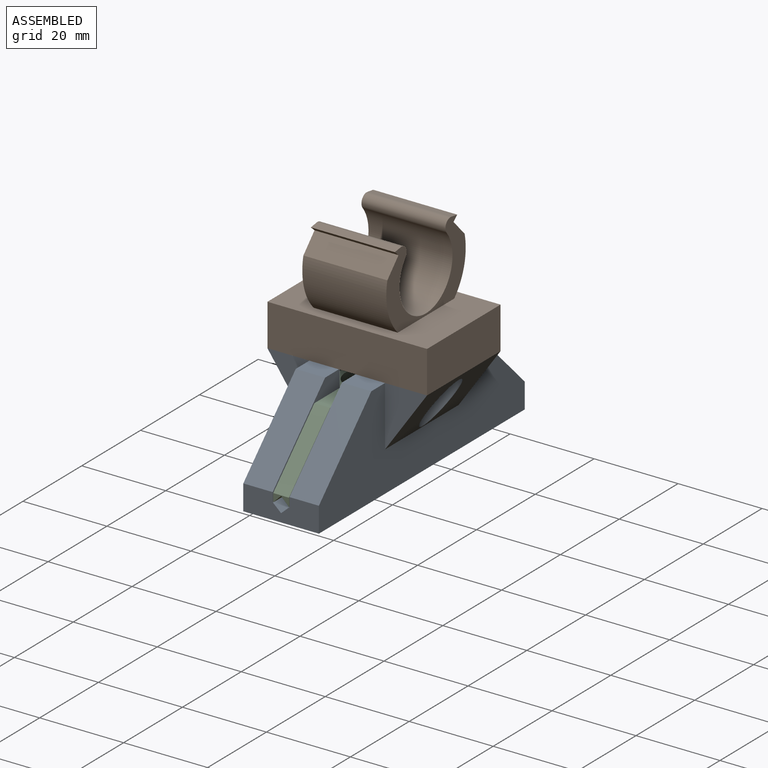
[diagram: assembled view]
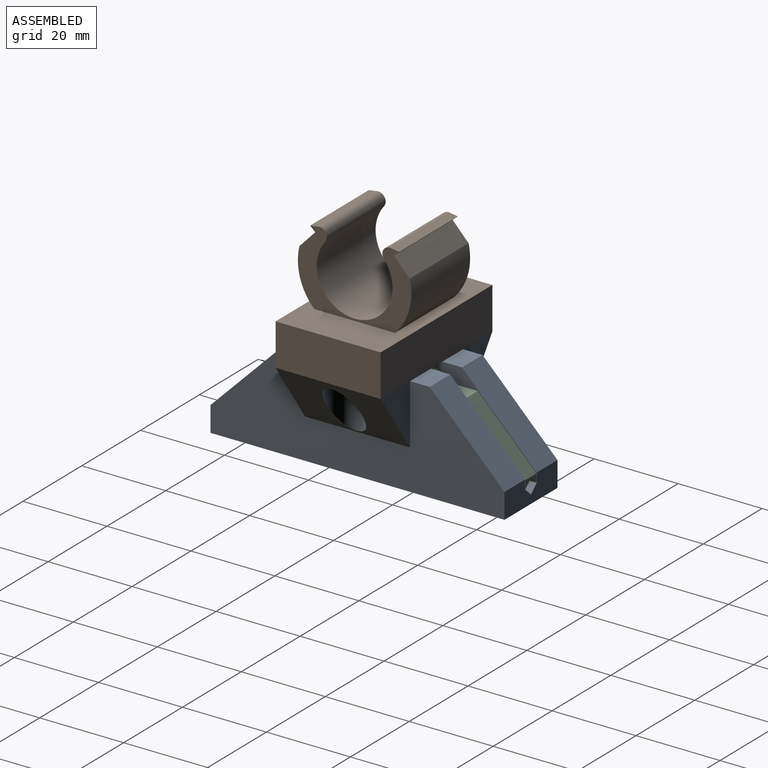
[diagram: assembled view, second angle]
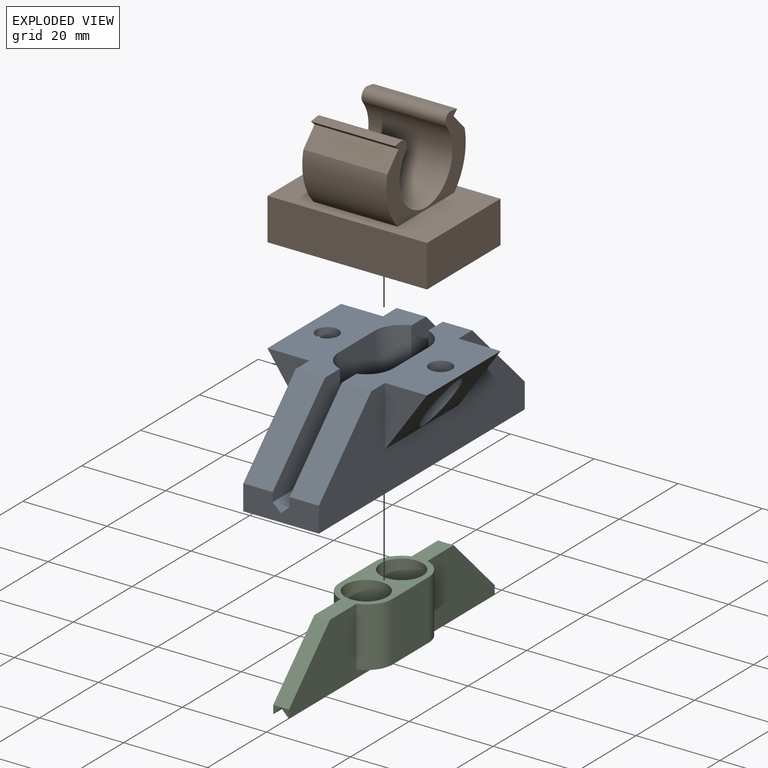
[diagram: exploded view]
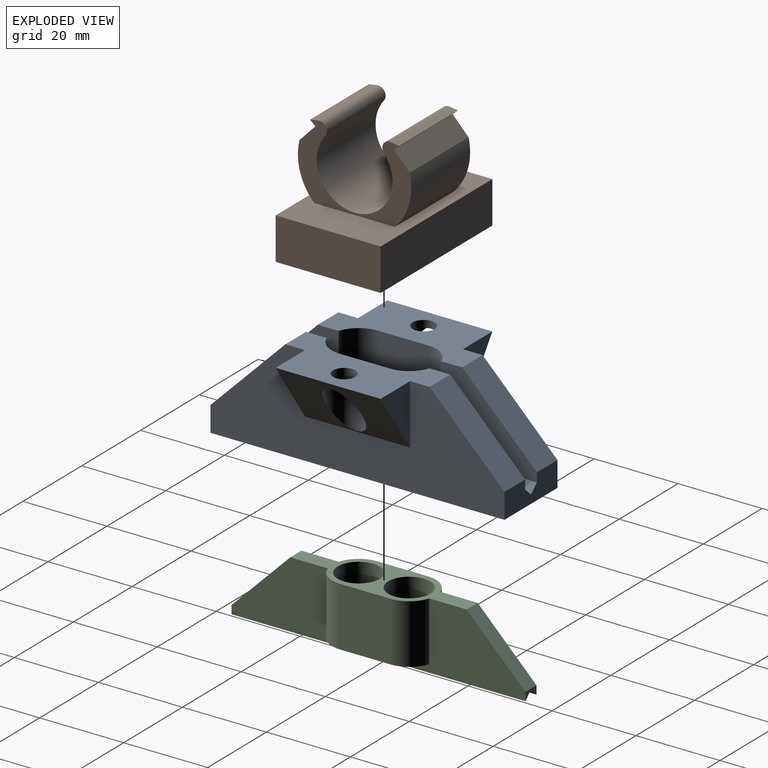
[diagram: exploded view, second angle]
FCSTD DOCUMENT  (FreeCAD 1.0R39109 (Git))
Label: Alweco_GreenHouse_Shade_Assembly
License: All rights reserved
objects: App::FeaturePython×6, App::Link×3, Assembly::JointGroup×1, Assembly::ViewGroup×1, Assembly::AssemblyObject×1
EXTERNAL_REF file=Alweco_GreenHouse_Shade_Base.FCStd obj=Body
EXTERNAL_REF file=Alweco_GreenHouse_Shade_SpringInsert.FCStd obj=Body
EXTERNAL_REF file=Alweco_GreenHouse_Shade_Hook.FCStd obj=Body

FEATURE [App::Link] Alweco_GreenHouse_Shade_Base
  LinkedObject = -> <external Alweco_GreenHouse_Shade_Base.FCStd>#Body
FEATURE [App::FeaturePython] GroundedJoint  # Assembly grounded joint (typed FeaturePython)
  ObjectToGround = -> Alweco_GreenHouse_Shade_Base
FEATURE [App::Link] Alweco_GreenHouse_Shade_SpringInsert
  LinkPlacement = pos=(-2.61e-14,-1.00023e-11,3.83266) rot=(0,0,1;3.14159rad)
  LinkedObject = -> <external Alweco_GreenHouse_Shade_SpringInsert.FCStd>#Body
  Placement = pos=(-2.61e-14,-1.00023e-11,3.83266) rot=(0,0,1;3.14159rad)
FEATURE [App::FeaturePython] Joint  label="Slider"  # Assembly joint (typed FeaturePython)
  Activated = true
  AngleMax = 0
  AngleMin = 0
  Detach1 = false
  Detach2 = false
  Distance = 0
  Distance2 = 0
  EnableAngleMax = false
  EnableAngleMin = false
  EnableLengthMax = true
  EnableLengthMin = true
  JointType = 3 (Slider)
  LengthMax = -1
  LengthMin = -25
  Offset2 = pos=(0,0,0) rot=(0,0,1;3.14159rad)
  Placement1 = pos=(6.5,6,13.8327) rot=(0,1,0;3.14159rad)
  Placement2 = pos=(-6.5,-6,11) rot=(1,0,0;3.14159rad)
  Reference1 = -> Assembly [Alweco_GreenHouse_Shade_Base.Edge100,Alweco_GreenHouse_Shade_Base.Edge100]
  Reference2 = -> Assembly [Alweco_GreenHouse_Shade_SpringInsert.Edge44,Alweco_GreenHouse_Shade_SpringInsert.Edge44]
FEATURE [App::Link] Alweco_GreenHouse_Shade_Hook
  LinkPlacement = pos=(1.21e-14,8.9e-15,23.8327) rot=(0,0,-1;1.5708rad)
  LinkedObject = -> <external Alweco_GreenHouse_Shade_Hook.FCStd>#Body
  Placement = pos=(1.21e-14,8.9e-15,23.8327) rot=(0,0,-1;1.5708rad)
FEATURE [App::FeaturePython] Joint001  label="Fixed"  # Assembly joint (typed FeaturePython)
  Activated = true
  AngleMax = 0
  AngleMin = 0
  Detach1 = false
  Detach2 = false
  Distance = 0
  Distance2 = 0
  EnableAngleMax = false
  EnableAngleMin = false
  EnableLengthMax = false
  EnableLengthMin = false
  JointType = 0 (Fixed)
  LengthMax = 0
  LengthMin = 0
  Offset2 = pos=(0,0,0) rot=(0,0,1;1.5708rad)
  Placement1 = pos=(9.5,16,0) rot=(1,0,0;3.14159rad)
  Placement2 = pos=(16,-9.5,23.8327) rot=(0,0,1;4.71239rad)
  Reference1 = -> Assembly [Alweco_GreenHouse_Shade_Hook.Edge14,Alweco_GreenHouse_Shade_Hook.Edge14]
  Reference2 = -> Assembly [Alweco_GreenHouse_Shade_Base.Edge93,Alweco_GreenHouse_Shade_Base.Edge93]
FEATURE [Assembly::JointGroup] Joints
  Group = -> [GroundedJoint,Joint,Joint001]
FEATURE [App::FeaturePython] Move  # WARN: FeaturePython — macro-defined, semantics opaque (R4)
  MoveType = 0
  MovementTransform = pos=(0,0,39) rot=(0,0,-1.00436;0rad)
  References = -> Assembly [Alweco_GreenHouse_Shade_Hook.]
FEATURE [App::FeaturePython] Move001  # WARN: FeaturePython — macro-defined, semantics opaque (R4)
  MoveType = 0
  MovementTransform = pos=(0,0,-34) rot=(0,0,1;0rad)
  References = -> Assembly [Alweco_GreenHouse_Shade_Base.]
FEATURE [App::FeaturePython] Exploded_View  # WARN: FeaturePython — macro-defined, semantics opaque (R4)
  Moves = -> [Move,Move001]
FEATURE [Assembly::ViewGroup] Exploded_Views
  Group = -> [Exploded_View]
FEATURE [Assembly::AssemblyObject] Assembly
  Group = -> [Joints,Alweco_GreenHouse_Shade_Base,GroundedJoint,Alweco_GreenHouse_Shade_SpringInsert,Joint,Alweco_GreenHouse_Shade_Hook,Joint001,Exploded_Views,Exploded_View,Move,Move001]
  Origin = -> Origin
  Type = Assembly

RESOLVED EXTERNAL PARTS (link-assembly join: the EXTERNAL_REF files above that resolve inside this repo's crawl, each included once):
---- part Alweco_GreenHouse_Shade_Base.FCStd = doc fcstd_9bdf764263a4 ----
FCSTD DOCUMENT  (FreeCAD 1.0R39109 (Git))
Label: Alweco_GreenHouse_Shade_Base
License: All rights reserved
objects: Sketcher::SketchObject×5, PartDesign::Pad×2, PartDesign::Pocket×2, PartDesign::Hole×1, PartDesign::Body×1
note: 26 computed .brp shape members not serialized (recipe doc carries the construction recipe); baked Part::Feature solids carry a one-line shape summary decoded from their .brp

FEATURE [Sketcher::SketchObject] Sketch
  ArcFitTolerance = 1e-06
  AttachmentSupport = -> [XZ_Plane]
  FullyConstrained = true
  MakeInternals = false
  MapMode = 5
  Placement = pos=(0,0,0) rot=(1,0,0;1.5708rad)
  sketch-geometry (9):
    g0: LineSegment StartX=-9 StartY=0 StartZ=0 EndX=9 EndY=0 EndZ=0
    g1: LineSegment StartX=0 StartY=2 StartZ=0 EndX=-2 EndY=3.83266 EndZ=0
    g2: LineSegment StartX=0 StartY=2 StartZ=0 EndX=2 EndY=3.83266 EndZ=0
    g3: LineSegment StartX=2 StartY=3.83266 StartZ=0 EndX=2 EndY=23.8327 EndZ=0
    g4: LineSegment StartX=-2 StartY=3.83266 StartZ=0 EndX=-2 EndY=23.8327 EndZ=0
    g5: LineSegment StartX=-2 StartY=23.8327 StartZ=0 EndX=-9 EndY=23.8327 EndZ=0
    g6: LineSegment StartX=2 StartY=23.8327 StartZ=0 EndX=9 EndY=23.8327 EndZ=0
    g7: LineSegment StartX=9 StartY=23.8327 StartZ=0 EndX=9 EndY=0 EndZ=0
    g8: LineSegment StartX=-9 StartY=23.8327 StartZ=0 EndX=-9 EndY=0 EndZ=0
  constraints (26):
    c: PointOnObject(g0,g-1)
    c: PointOnObject(g0,g-1)
    c: PointOnObject(g1,g-2)
    c: Coincident(g2,g1)
    c: Symmetric(g1,g2,g-2)
    c: DistanceX(g1,g2) = 4
    c: Angle(g2,g1) = 1.65806
    c: Coincident(g3,g2)
    c: Vertical(g3)
    c: Coincident(g4,g1)
    c: Symmetric(g4,g3,g-2)
    c: DistanceY(g3,g3) = 20  'InnerHeight'
    c: DistanceY(g-1,g1) = 2
    c: Coincident(g5,g4)
    c: Horizontal(g5)
    c: Coincident(g6,g3)
    c: Coincident(g7,g6)
    c: Coincident(g7,g0)
    c: Coincident(g8,g5)
    c: Coincident(g8,g0)
    c: Vertical(g8)
    c: Vertical(g7)
    c: Symmetric(g6,g5,g-2)
    c: DistanceX(g6,g6) = 7
    c: DistanceY(g8,g8) = 23.8327  'Height'
    c: DistanceX(g0,g0) = 18  'Width'
FEATURE [PartDesign::Pad] Pad
  Direction = (0,-1,2e-16)
  Length = 70
  Length2 = 10
  Midplane = true
  Placement = pos=(0,0,0) rot=(1,0,0;1.5708rad)
  Profile = -> Sketch
  ReferenceAxis = -> Sketch [N_Axis]
  Refine = true
  Suppressed = false
  Type = 0
FEATURE [Sketcher::SketchObject] Sketch001
  ArcFitTolerance = 1e-06
  AttachmentSupport = -> [Pad]
  FullyConstrained = true
  MakeInternals = false
  MapMode = 5
  Placement = pos=(0,5.3e-15,23.8327) rot=(0,0,1;3.14159rad)
  expr: .Constraints.Height = 25 mm - .Constraints.Width
  sketch-geometry (4):
    g0: ArcOfCircle CenterX=0 CenterY=6 CenterZ=0 NormalX=0 NormalY=0 NormalZ=1 AngleXU=0 Radius=6.5 StartAngle=0 EndAngle=3.14159
    g1: ArcOfCircle CenterX=0 CenterY=-6 CenterZ=0 NormalX=0 NormalY=0 NormalZ=1 AngleXU=0 Radius=6.5 StartAngle=3.14159 EndAngle=6.28319
    g2: LineSegment StartX=6.5 StartY=6 StartZ=0 EndX=6.5 EndY=-6 EndZ=0
    g3: LineSegment StartX=-6.5 StartY=6 StartZ=0 EndX=-6.5 EndY=-6 EndZ=0
  constraints (9):
    c: Tangent(g0,g2) = 1.5708
    c: Tangent(g0,g3) = -1.5708
    c: Tangent(g1,g2) = 1.5708
    c: Tangent(g1,g3) = -1.5708
    c: Equal(g0,g1)
    c: PointOnObject(g0,g-2)
    c: Symmetric(g0,g1,g-1)
    c: Distance(g1,g1) = 13  'Width'
    c: DistanceY(g1,g0) = 12  'Height'
FEATURE [PartDesign::Pocket] Pocket
  BaseFeature = -> Pad
  Direction = (0,0,-1)
  Length = 20
  Length2 = 5
  Placement = pos=(0,0,0) rot=(1,0,0;1.5708rad)
  Profile = -> Sketch001
  ReferenceAxis = -> Sketch001 [N_Axis]
  Refine = true
  Suppressed = false
  Type = 0
FEATURE [Sketcher::SketchObject] Sketch002
  ArcFitTolerance = 1e-06
  AttachmentSupport = -> [XZ_Plane]
  FullyConstrained = true
  MakeInternals = false
  MapMode = 5
  Placement = pos=(0,0,0) rot=(1,0,0;1.5708rad)
  expr: Constraints[15] = <<Sketch>>.Constraints.Width
  expr: Constraints[5] = <<Sketch>>.Constraints.Height
  sketch-geometry (6):
    g0: LineSegment StartX=9 StartY=23.8327 StartZ=0 EndX=19 EndY=23.8327 EndZ=0
    g1: LineSegment StartX=-9 StartY=23.8327 StartZ=0 EndX=-19 EndY=23.8327 EndZ=0
    g2: LineSegment StartX=19 StartY=23.8327 StartZ=0 EndX=9 EndY=9.55118 EndZ=0
    g3: LineSegment StartX=9 StartY=23.8327 StartZ=0 EndX=9 EndY=9.55118 EndZ=0
    g4: LineSegment StartX=-19 StartY=23.8327 StartZ=0 EndX=-9 EndY=9.55118 EndZ=0
    g5: LineSegment StartX=-9 StartY=9.55118 StartZ=0 EndX=-9 EndY=23.8327 EndZ=0
  constraints (17):
    c: Distance(g0) = 10
    c: Horizontal(g0)
    c: Distance(g1) = 10
    c: Horizontal(g1)
    c: Symmetric(g1,g0,g-2)
    c: DistanceY(g-1,g0) = 23.8327
    c: Coincident(g2,g0)
    c: Coincident(g3,g0)
    c: Coincident(g3,g2)
    c: Vertical(g3)
    c: Coincident(g4,g1)
    c: Coincident(g5,g4)
    c: Coincident(g5,g1)
    c: Symmetric(g2,g4,g-2)
    c: Angle(g0,g2) = 0.959931
    c: DistanceX(g1,g0) = 18
    c: DistanceX(g1,g0) = 38  'FullWidth'
FEATURE [PartDesign::Pad] Pad001
  BaseFeature = -> Pocket
  Direction = (0,-1,2e-16)
  Length = 25
  Length2 = 10
  Midplane = true
  Placement = pos=(0,0,0) rot=(1,0,0;1.5708rad)
  Profile = -> Sketch002
  ReferenceAxis = -> Sketch002 [N_Axis]
  Refine = true
  Suppressed = false
  Type = 0
FEATURE [Sketcher::SketchObject] Sketch003
  ArcFitTolerance = 1e-06
  AttachmentOffset = pos=(0,0,-14) rot=(0,0,1;0rad)
  AttachmentSupport = -> [Pad001]
  FullyConstrained = true
  MakeInternals = false
  MapMode = 5
  Placement = pos=(0,5.3e-15,9.83266) rot=(0,0,1;3.14159rad)
  sketch-geometry (2):
    g0: Circle CenterX=-13.5 CenterY=0 CenterZ=0 NormalX=0 NormalY=0 NormalZ=1 AngleXU=0 Radius=2.5
    g1: Circle CenterX=13.5 CenterY=0 CenterZ=0 NormalX=0 NormalY=0 NormalZ=1 AngleXU=0 Radius=2.5
  constraints (6):
    c: PointOnObject(g0,g-1)
    c: Equal(g1,g0)
    c: Diameter(g1) = 5
    c: Symmetric(g0,g1,g-2)
    c: DistanceX(g0,g-1) = 13.5
    c: Distance(g0,g1) = 27  'HoleSperation'
FEATURE [PartDesign::Hole] Hole
  BaseFeature = -> Pad001
  CustomThreadClearance = 0
  Depth = 25
  DepthType = 0
  Diameter = 5.3
  DrillForDepth = false
  DrillPoint = 1
  DrillPointAngle = 118
  HoleCutCountersinkAngle = 90
  HoleCutCustomValues = false
  HoleCutDepth = 12.3
  HoleCutDiameter = 8.5
  HoleCutType = 1
  ModelThread = false
  Placement = pos=(0,0,0) rot=(1,0,0;1.5708rad)
  Profile = -> Sketch003
  Refine = true
  Reversed = true
  Suppressed = false
  Tapered = false
  TaperedAngle = 90
  ThreadClass = 0
  ThreadDepth = 25
  ThreadDepthType = 0
  ThreadDirection = 0
  ThreadFit = 1
  ThreadSize = 13
  ThreadType = 2
  Threaded = false
  UseCustomThreadClearance = false
FEATURE [Sketcher::SketchObject] Sketch005
  ArcFitTolerance = 1e-06
  AttachmentSupport = -> [YZ_Plane]
  FullyConstrained = true
  MakeInternals = false
  MapMode = 5
  Placement = pos=(0,0,0) rot=(0.57735,0.57735,0.57735;2.0944rad)
  sketch-geometry (6):
    g0: LineSegment StartX=-36 StartY=25 StartZ=0 EndX=-36 EndY=5 EndZ=0
    g1: LineSegment StartX=-36 StartY=25 StartZ=0 EndX=-16 EndY=25 EndZ=0
    g2: LineSegment StartX=-16 StartY=25 StartZ=0 EndX=-36 EndY=5 EndZ=0
    g3: LineSegment StartX=16 StartY=25 StartZ=0 EndX=36 EndY=25 EndZ=0
    g4: LineSegment StartX=36 StartY=25 StartZ=0 EndX=36 EndY=5 EndZ=0
    g5: LineSegment StartX=36 StartY=5 StartZ=0 EndX=16 EndY=25 EndZ=0
  constraints (17):
    c: Vertical(g0)
    c: Coincident(g1,g0)
    c: Horizontal(g1)
    c: Coincident(g2,g1)
    c: Coincident(g2,g0)
    c: Equal(g1,g0)
    c: DistanceX(g1,g1) = 20
    c: Horizontal(g3)
    c: Coincident(g4,g3)
    c: Vertical(g4)
    c: Coincident(g5,g4)
    c: Coincident(g5,g3)
    c: Equal(g1,g3)
    c: Equal(g3,g4)
    c: Symmetric(g0,g3,g-2)
    c: DistanceX(g0,g-1) = 36
    c: DistanceY(g-1,g0) = 25
FEATURE [PartDesign::Pocket] Pocket001
  BaseFeature = -> Hole
  Direction = (-1,0,0)
  Length = 22
  Length2 = 5
  Midplane = true
  Placement = pos=(0,0,0) rot=(1,0,0;1.5708rad)
  Profile = -> Sketch005
  ReferenceAxis = -> Sketch005 [N_Axis]
  Refine = true
  Suppressed = false
  Type = 0
FEATURE [PartDesign::Body] Body  label="Alweco_GreenHouse_Shade_Base"
  AllowCompound = false
  Group = -> [Sketch,Pad,Sketch001,Pocket,Sketch002,Pad001,Sketch003,Hole,Sketch005,Pocket001]
  Origin = -> Origin
  Tip = -> Pocket001
---- part Alweco_GreenHouse_Shade_Hook.FCStd = doc fcstd_2bc5e08fbdbf ----
FCSTD DOCUMENT  (FreeCAD 1.0R39109 (Git))
Label: Alweco_GreenHouse_Shade_Hook
License: All rights reserved
objects: Sketcher::SketchObject×3, PartDesign::Pad×2, PartDesign::Pocket×1, PartDesign::Chamfer×1, PartDesign::Body×1
note: 19 computed .brp shape members not serialized (recipe doc carries the construction recipe); baked Part::Feature solids carry a one-line shape summary decoded from their .brp
EXTERNAL_REF file=Alweco_GreenHouse_Shade_Base.FCStd obj=Pad001
EXTERNAL_REF file=Alweco_GreenHouse_Shade_Base.FCStd obj=Sketch002
EXTERNAL_REF file=Alweco_GreenHouse_Shade_Base.FCStd obj=Sketch003

FEATURE [Sketcher::SketchObject] Sketch
  ArcFitTolerance = 1e-06
  AttachmentSupport = -> [XY_Plane]
  FullyConstrained = true
  MakeInternals = false
  MapMode = 5
  expr: Constraints[8] = <<Alweco_GreenHouse_Shade_Base>>#Pad001.Length
  expr: Constraints[9] = <<Alweco_GreenHouse_Shade_Base>>#<<Sketch002>>.Constraints.FullWidth
  sketch-geometry (4):
    g0: LineSegment StartX=-12.5 StartY=19 StartZ=0 EndX=-12.5 EndY=-19 EndZ=0
    g1: LineSegment StartX=-12.5 StartY=-19 StartZ=0 EndX=12.5 EndY=-19 EndZ=0
    g2: LineSegment StartX=12.5 StartY=-19 StartZ=0 EndX=12.5 EndY=19 EndZ=0
    g3: LineSegment StartX=12.5 StartY=19 StartZ=0 EndX=-12.5 EndY=19 EndZ=0
  constraints (10):
    c: Coincident(g0,g1)
    c: Coincident(g1,g2)
    c: Coincident(g2,g3)
    c: Coincident(g3,g0)
    c: Vertical(g0)
    c: Horizontal(g1)
    c: Symmetric(g2,g1,g-1)
    c: Symmetric(g0,g2,g-2)
    c: DistanceX(g3,g3) = 25
    c: DistanceY(g2,g2) = 38
FEATURE [PartDesign::Pad] Pad
  Direction = (0,0,1)
  Length = 10
  Length2 = 10
  Profile = -> Sketch
  ReferenceAxis = -> Sketch [N_Axis]
  Refine = true
  Suppressed = false
  Type = 0
FEATURE [Sketcher::SketchObject] Sketch001
  ArcFitTolerance = 1e-06
  AttachmentSupport = -> [Pad]
  FullyConstrained = true
  MakeInternals = false
  MapMode = 5
  Placement = pos=(0,0,0) rot=(1,0,0;3.14159rad)
  expr: Constraints[4] = <<Alweco_GreenHouse_Shade_Base>>#<<Sketch003>>.Constraints.HoleSperation
  sketch-geometry (2):
    g0: Circle CenterX=0 CenterY=13.5 CenterZ=0 NormalX=0 NormalY=0 NormalZ=1 AngleXU=0 Radius=4.1
    g1: Circle CenterX=0 CenterY=-13.5 CenterZ=0 NormalX=0 NormalY=0 NormalZ=1 AngleXU=0 Radius=4.1
  constraints (5):
    c: PointOnObject(g0,g-2)
    c: Equal(g0,g1)
    c: Diameter(g0) = 8.2
    c: Symmetric(g1,g0,g-1)
    c: DistanceY(g1,g0) = 27
FEATURE [PartDesign::Pocket] Pocket
  BaseFeature = -> Pad
  Direction = (0,0,1)
  Length = 8
  Length2 = 5
  Profile = -> Sketch001
  ReferenceAxis = -> Sketch001 [N_Axis]
  Refine = true
  Suppressed = false
  Type = 0
FEATURE [PartDesign::Chamfer] Chamfer
  Angle = 45
  Base = -> Pocket [Face10,Face9]
  BaseFeature = -> Pocket
  ChamferType = 0
  FlipDirection = false
  Refine = true
  Size = 3.3
  Size2 = 1
  SupportTransform = false
  Suppressed = false
  UseAllEdges = false
FEATURE [Sketcher::SketchObject] Sketch003
  ArcFitTolerance = 1e-06
  AttachmentSupport = -> [XZ_Plane]
  FullyConstrained = false
  MakeInternals = false
  MapMode = 5
  Placement = pos=(0,0,0) rot=(1,0,0;1.5708rad)
  sketch-geometry (13):
    g0: ArcOfCircle CenterX=2e-16 CenterY=19.5 CenterZ=0 NormalX=0 NormalY=0 NormalZ=1 AngleXU=0 Radius=9 StartAngle=2.46192 EndAngle=6.96286
    g1: ArcOfCircle CenterX=-8.36111 CenterY=26.2568 CenterZ=0 NormalX=0 NormalY=0 NormalZ=1 AngleXU=0 Radius=1.75 StartAngle=5.60351 EndAngle=8.00207
    g2: ArcOfCircle CenterX=8.36111 CenterY=26.2568 CenterZ=0 NormalX=0 NormalY=0 NormalZ=1 AngleXU=0 Radius=1.75 StartAngle=1.42271 EndAngle=3.82127
    g3: LineSegment StartX=-8.61932 StartY=27.9876 StartZ=0 EndX=-10.5974 EndY=27.6926 EndZ=0
    g4: LineSegment StartX=8.61932 StartY=27.9876 StartZ=0 EndX=10.5974 EndY=27.6926 EndZ=0
    g5: LineSegment StartX=-10.5974 StartY=27.6926 StartZ=0 EndX=-9.34743 EndY=26.5861 EndZ=0
    g6: LineSegment StartX=-9.34743 StartY=26.5861 StartZ=0 EndX=-13.1389 EndY=22.6017 EndZ=0
    g7: LineSegment StartX=10.5974 StartY=27.6926 StartZ=0 EndX=9.34743 EndY=26.5861 EndZ=0
    g8: LineSegment StartX=9.34743 StartY=26.5861 StartZ=0 EndX=13.1389 EndY=22.6017 EndZ=0
    g9: ArcOfCircle CenterX=2e-16 CenterY=19.5 CenterZ=0 NormalX=0 NormalY=0 NormalZ=1 AngleXU=0 Radius=13.5 StartAngle=2.90977 EndAngle=4.25183
    g10: ArcOfCircle CenterX=2e-16 CenterY=19.5 CenterZ=0 NormalX=0 NormalY=0 NormalZ=1 AngleXU=0 Radius=13.5 StartAngle=5.17294 EndAngle=6.51501
    g11: LineSegment StartX=-6 StartY=7.40661 StartZ=0 EndX=6 EndY=7.40661 EndZ=0
    g12: LineSegment [constr] StartX=-5.9647 StartY=12.7604 StartZ=0 EndX=-8.94706 EndY=9.39059 EndZ=0
  constraints (33):
    c: Radius(g0) = 9  'IR'
    c: Symmetric(g0,g0,g-2)
    c: Coincident(g5,g3)
    c: Coincident(g6,g5)
    c: Tangent(g3,g1) = -1.5708
    c: Angle(g5,g3) = 0.872665
    c: Distance(g6,g6) = 5.5
    c: DistanceX(g5,g5) = 1.25
    c: Symmetric(g3,g4,g-2)
    c: Coincident(g7,g4)
    c: Coincident(g8,g7)
    c: Symmetric(g7,g5,g-2)
    c: Distance(g3,g3) = 2
    c: DistanceY(g-1,g0) = 19.5
    c: Coincident(g9,g0)
    c: Coincident(g9,g6)
    c: Coincident(g10,g0)
    c: Coincident(g10,g8)
    c: Coincident(g11,g9)
    c: Coincident(g11,g10)
    c: Symmetric(g10,g9,g-2)
    c: Equal(g8,g6)
    c: PointOnObject(g12,g0)
    c: PointOnObject(g12,g9)
    c: Perpendicular(g0,g12)
    c: Distance(g12,g12) = 4.5
    c: DistanceX(g0,g0) = 14
    c: DistanceX(g11,g11) = 12
    c: Tangent(g1,g0) = 1.5708
    c: Tangent(g2,g0) = 1.5708
    c: Angle(g4,g7) = 0.872665
    c: Tangent(g4,g2) = 1.5708
    c: Radius(g1) = 1.75
FEATURE [PartDesign::Pad] Pad001
  BaseFeature = -> Chamfer
  Direction = (0,-1,2e-16)
  Length = 20
  Length2 = 10
  Midplane = true
  Profile = -> Sketch003
  ReferenceAxis = -> Sketch003 [N_Axis]
  Refine = true
  Suppressed = false
  Type = 0
FEATURE [PartDesign::Body] Body  label="Alweco_GreenHouse_Shade_Hook"
  AllowCompound = false
  Group = -> [Sketch,Pad,Sketch001,Pocket,Chamfer,Sketch003,Pad001]
  Origin = -> Origin
  Tip = -> Pad001
---- part Alweco_GreenHouse_Shade_SpringInsert.FCStd = doc fcstd_dd7a401acc18 ----
FCSTD DOCUMENT  (FreeCAD 1.0R39109 (Git))
Label: Alweco_GreenHouse_Shade_SpringInsert
License: All rights reserved
objects: Sketcher::SketchObject×4, PartDesign::Pad×2, PartDesign::Pocket×2, PartDesign::Fillet×1, PartDesign::Body×1
note: 24 computed .brp shape members not serialized (recipe doc carries the construction recipe); baked Part::Feature solids carry a one-line shape summary decoded from their .brp
EXTERNAL_REF file=Alweco_GreenHouse_Shade_Base.FCStd obj=Sketch
EXTERNAL_REF file=Alweco_GreenHouse_Shade_Base.FCStd obj=Sketch001

FEATURE [Sketcher::SketchObject] Sketch
  ArcFitTolerance = 1e-06
  AttachmentSupport = -> [XZ_Plane]
  FullyConstrained = true
  MakeInternals = false
  MapMode = 5
  Placement = pos=(0,0,0) rot=(1,0,0;1.5708rad)
  expr: .Constraints.Height = <<Alweco_GreenHouse_Shade_Base>>#<<Sketch>>.Constraints.InnerHeight - 4 mm
  expr: Constraints[9] = 3.75 mm
  sketch-geometry (5):
    g0: LineSegment StartX=0 StartY=1.875 StartZ=0 EndX=-1.875 EndY=0 EndZ=0
    g1: LineSegment StartX=0 StartY=1.875 StartZ=0 EndX=1.875 EndY=0 EndZ=0
    g2: LineSegment StartX=-1.875 StartY=0 StartZ=0 EndX=-1.875 EndY=16 EndZ=0
    g3: LineSegment StartX=1.875 StartY=0 StartZ=0 EndX=1.875 EndY=16 EndZ=0
    g4: LineSegment StartX=-1.875 StartY=16 StartZ=0 EndX=1.875 EndY=16 EndZ=0
  constraints (15):
    c: PointOnObject(g0,g-2)
    c: Coincident(g1,g0)
    c: Symmetric(g0,g1,g-2)
    c: Coincident(g2,g0)
    c: Vertical(g2)
    c: Coincident(g3,g1)
    c: Vertical(g3)
    c: PointOnObject(g1,g-1)
    c: Angle(g0,g1) = 1.5708
    c: DistanceX(g0,g1) = 3.75
    c: Coincident(g4,g2)
    c: Coincident(g4,g3)
    c: Horizontal(g4)
    c: DistanceY(g3,g3) = 16  'Height'
    c: DistanceY(g-1,g0) = 1.875  'SlotHeight'
FEATURE [PartDesign::Pad] Pad
  Direction = (0,-1,2e-16)
  Length = 70
  Length2 = 10
  Midplane = true
  Placement = pos=(0,0,0) rot=(1,0,0;1.5708rad)
  Profile = -> Sketch
  ReferenceAxis = -> Sketch [N_Axis]
  Refine = true
  Suppressed = false
  Type = 0
FEATURE [Sketcher::SketchObject] Sketch001
  ArcFitTolerance = 1e-06
  AttachmentSupport = -> [Pad]
  FullyConstrained = true
  MakeInternals = false
  MapMode = 5
  Placement = pos=(0,3.6e-15,16) rot=(0,0,1;3.14159rad)
  expr: Constraints[7] = <<Alweco_GreenHouse_Shade_Base>>#<<Sketch001>>.Constraints.Height
  expr: Constraints[8] = <<Alweco_GreenHouse_Shade_Base>>#<<Sketch001>>.Constraints.Width - 0.3 mm
  sketch-geometry (4):
    g0: ArcOfCircle CenterX=0 CenterY=6 CenterZ=0 NormalX=0 NormalY=0 NormalZ=1 AngleXU=0 Radius=6.35 StartAngle=1e-16 EndAngle=3.14159
    g1: ArcOfCircle CenterX=0 CenterY=-6 CenterZ=0 NormalX=0 NormalY=0 NormalZ=1 AngleXU=0 Radius=6.35 StartAngle=3.14159 EndAngle=6.28319
    g2: LineSegment StartX=6.35 StartY=6 StartZ=0 EndX=6.35 EndY=-6 EndZ=0
    g3: LineSegment StartX=-6.35 StartY=6 StartZ=0 EndX=-6.35 EndY=-6 EndZ=0
  constraints (9):
    c: Tangent(g0,g2) = 1.5708
    c: Tangent(g0,g3) = -1.5708
    c: Tangent(g1,g2) = 1.5708
    c: Tangent(g1,g3) = -1.5708
    c: Equal(g0,g1)
    c: PointOnObject(g0,g-2)
    c: Symmetric(g0,g1,g-1)
    c: DistanceY(g1,g0) = 12
    c: Distance(g1,g1) = 12.7
FEATURE [PartDesign::Pad] Pad001
  BaseFeature = -> Pad
  Direction = (0,0,1)
  Length = 14.125
  Length2 = 10
  Placement = pos=(0,0,0) rot=(1,0,0;1.5708rad)
  Profile = -> Sketch001
  ReferenceAxis = -> Sketch001 [N_Axis]
  Refine = true
  Reversed = true
  Suppressed = false
  Type = 0
  expr: Length = <<Sketch>>.Constraints.Height - <<Sketch>>.Constraints.SlotHeight
FEATURE [Sketcher::SketchObject] Sketch005  label="Sketch002"
  ArcFitTolerance = 1e-06
  AttachmentSupport = -> [YZ_Plane]
  FullyConstrained = true
  MakeInternals = false
  MapMode = 5
  Placement = pos=(0,0,0) rot=(0.57735,0.57735,0.57735;2.0944rad)
  sketch-geometry (6):
    g0: LineSegment StartX=-36 StartY=25 StartZ=0 EndX=-36 EndY=1 EndZ=0
    g1: LineSegment StartX=-36 StartY=25 StartZ=0 EndX=-12 EndY=25 EndZ=0
    g2: LineSegment StartX=-12 StartY=25 StartZ=0 EndX=-36 EndY=1 EndZ=0
    g3: LineSegment StartX=12 StartY=25 StartZ=0 EndX=36 EndY=25 EndZ=0
    g4: LineSegment StartX=36 StartY=25 StartZ=0 EndX=36 EndY=1 EndZ=0
    g5: LineSegment StartX=36 StartY=1 StartZ=0 EndX=12 EndY=25 EndZ=0
  constraints (17):
    c: Vertical(g0)
    c: Coincident(g1,g0)
    c: Horizontal(g1)
    c: Coincident(g2,g1)
    c: Coincident(g2,g0)
    c: Equal(g1,g0)
    c: DistanceX(g1,g1) = 24
    c: Horizontal(g3)
    c: Coincident(g4,g3)
    c: Vertical(g4)
    c: Coincident(g5,g4)
    c: Coincident(g5,g3)
    c: Equal(g1,g3)
    c: Equal(g3,g4)
    c: Symmetric(g0,g3,g-2)
    c: DistanceX(g0,g-1) = 36
    c: DistanceY(g-1,g0) = 25
FEATURE [Sketcher::SketchObject] Sketch006
  ArcFitTolerance = 1e-06
  AttachmentSupport = -> [Pad001]
  FullyConstrained = true
  MakeInternals = false
  MapMode = 5
  Placement = pos=(0,3.1e-15,16) rot=(0,0,1;3.14159rad)
  sketch-geometry (2):
    g0: Circle CenterX=0 CenterY=6 CenterZ=0 NormalX=0 NormalY=0 NormalZ=1 AngleXU=0 Radius=5
    g1: Circle CenterX=0 CenterY=-6 CenterZ=0 NormalX=0 NormalY=0 NormalZ=1 AngleXU=0 Radius=5
  constraints (5):
    c: PointOnObject(g0,g-2)
    c: Equal(g1,g0)
    c: Diameter(g0) = 10
    c: Symmetric(g0,g1,g-1)
    c: DistanceY(g1,g0) = 12
FEATURE [PartDesign::Pocket] Pocket
  BaseFeature = -> Pad001
  Direction = (0,0,-1)
  Length = 12
  Length2 = 5
  Placement = pos=(0,0,0) rot=(1,0,0;1.5708rad)
  Profile = -> Sketch006
  ReferenceAxis = -> Sketch006 [N_Axis]
  Refine = true
  Suppressed = false
  Type = 0
FEATURE [PartDesign::Pocket] Pocket001
  BaseFeature = -> Pocket
  Direction = (-1,0,0)
  Length = 5
  Length2 = 5
  Midplane = true
  Placement = pos=(0,0,0) rot=(1,0,0;1.5708rad)
  Profile = -> Sketch005
  ReferenceAxis = -> Sketch005 [N_Axis]
  Refine = true
  Suppressed = false
  Type = 0
FEATURE [PartDesign::Fillet] Fillet
  Base = -> Pocket001 [Face21,Face20]
  BaseFeature = -> Pocket001
  Placement = pos=(0,0,0) rot=(1,0,0;1.5708rad)
  Radius = 5
  Refine = true
  SupportTransform = false
  Suppressed = false
  UseAllEdges = false
FEATURE [PartDesign::Body] Body  label="Alweco_GreenHouse_Shade_SpringInsert"
  AllowCompound = false
  Group = -> [Sketch,Pad,Sketch001,Pad001,Sketch006,Pocket,Sketch005,Pocket001,Fillet]
  Origin = -> Origin
  Tip = -> Fillet
